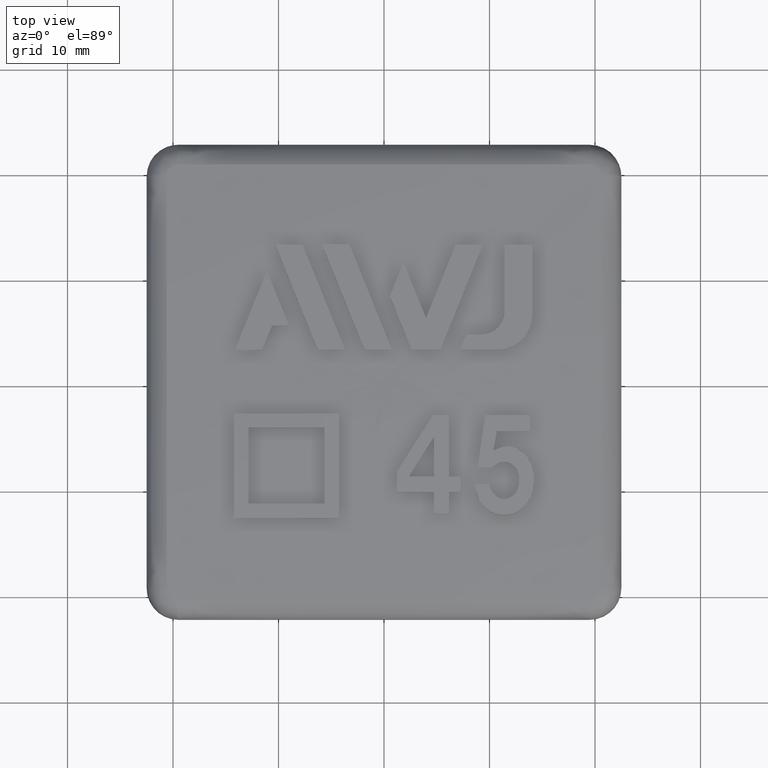
[diagram: clean part render]
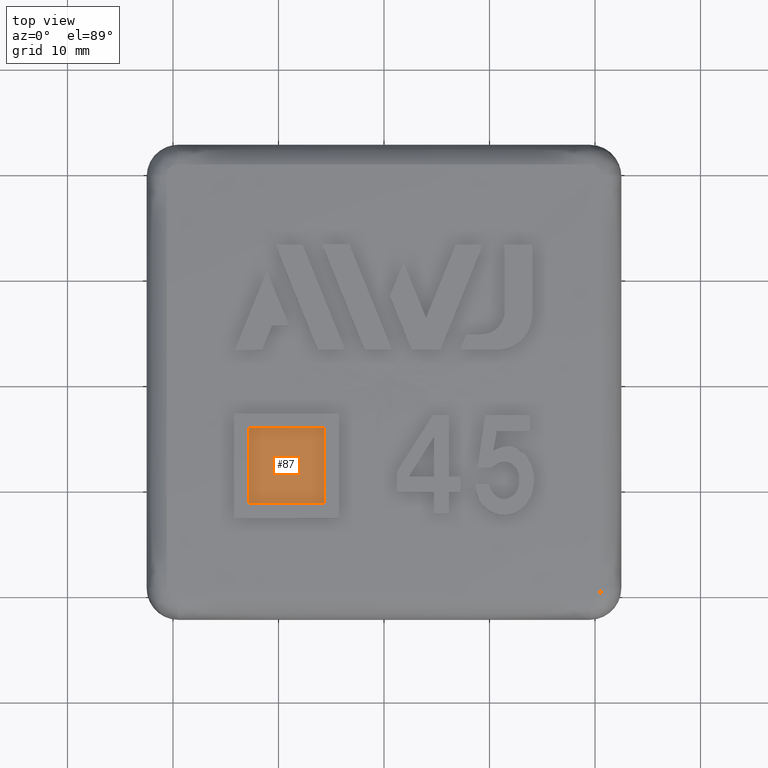
[diagram: same view with one face highlighted and labeled with its STEP entity id]
A machine part, top view. The second image highlights one B-rep face of the part: STEP entity #87.
In plain terms, the highlighted face is a freeform B-spline surface patch.
Its self-contained STEP definition (entity closure, byte-faithful):
#87 = ADVANCED_FACE( '', ( #391 ), #392, .T. );
#391 = FACE_OUTER_BOUND( '', #1242, .T. );
#392 = ( B_SPLINE_SURFACE( 3, 3, ( ( #1244, #1245, #1246, #1247 ), ( #1248, #1249, #1250, #1251 ), ( #1252, #1253, #1254, #1255 ), ( #1256, #1257, #1258, #1259 ) ), .UNSPECIFIED., .F., .F., .F. )B_SPLINE_SURFACE_WITH_KNOTS( ( 4, 4 ), ( 4, 4 ), ( 5.16032654171160, 5.96071117933298 ), ( -1.55936830234994, -1.52990122035821 ), .UNSPECIFIED. )RATIONAL_B_SPLINE_SURFACE( ( ( 1.00000000000000, 0.947324056331647, 0.947324056331647, 1.00000000000000 ), ( 0.999927642232191, 0.947255510077538, 0.947255510077538, 0.999927642232191 ), ( 0.999927642232191, 0.947255510077538, 0.947255510077538, 0.999927642232191 ), ( 1.00000000000000, 0.947324056331647, 0.947324056331647, 1.00000000000000 ) ) )BOUNDED_SURFACE(  )REPRESENTATION_ITEM( '' )GEOMETRIC_REPRESENTATION_ITEM(  )SURFACE(  ) );
#1242 = EDGE_LOOP( '', ( #3712, #3713, #3714, #3715 ) );
#1244 = CARTESIAN_POINT( '', ( -7.52779353144586, -15.6661306048325, 26.7208474507276 ) );
#1245 = CARTESIAN_POINT( '', ( -11.8230175461005, -13.6022157576236, 26.7208474507276 ) );
#1246 = CARTESIAN_POINT( '', ( -14.9747672133794, -10.0279790744417, 26.7208474507276 ) );
#1247 = CARTESIAN_POINT( '', ( -16.4849783694916, -5.50824942582882, 26.7208474507276 ) );
#1248 = CARTESIAN_POINT( '', ( -6.04003629453144, -12.5699512151582, 26.8614036215779 ) );
#1249 = CARTESIAN_POINT( '', ( -9.48637270549758, -10.9139386619593, 26.8614036215779 ) );
#1250 = CARTESIAN_POINT( '', ( -12.0152255894296, -8.04609708242038, 26.8614036215779 ) );
#1251 = CARTESIAN_POINT( '', ( -13.2269658101489, -4.41962526102226, 26.8614036215779 ) );
#1252 = CARTESIAN_POINT( '', ( -4.55154364823312, -9.47224136115757, 26.9513355321669 ) );
#1253 = CARTESIAN_POINT( '', ( -7.14857284410227, -8.22433273108338, 26.9513355321669 ) );
#1254 = CARTESIAN_POINT( '', ( -9.05422104220964, -6.06323543150141, 26.9513355321669 ) );
#1255 = CARTESIAN_POINT( '', ( -9.96734279114962, -3.33046298125548, 26.9513355321669 ) );
#1256 = CARTESIAN_POINT( '', ( -3.06263870456676, -6.37367347294161, 26.9906236606777 ) );
#1257 = CARTESIAN_POINT( '', ( -4.81012543585326, -5.53398180664029, 26.9906236606777 ) );
#1258 = CARTESIAN_POINT( '', ( -6.09239632675797, -4.07982454801358, 26.9906236606777 ) );
#1259 = CARTESIAN_POINT( '', ( -6.70681688963028, -2.24099901458254, 26.9906236606777 ) );
#3712 = ORIENTED_EDGE( '', *, *, #5953, .F. );
#3713 = ORIENTED_EDGE( '', *, *, #5954, .F. );
#3714 = ORIENTED_EDGE( '', *, *, #5955, .F. );
#3715 = ORIENTED_EDGE( '', *, *, #5956, .F. );
#5953 = EDGE_CURVE( '', #6831, #6832, #6833, .T. );
#5954 = EDGE_CURVE( '', #6834, #6831, #6835, .T. );
#5955 = EDGE_CURVE( '', #6836, #6834, #6837, .T. );
#5956 = EDGE_CURVE( '', #6832, #6836, #6838, .T. );
#6831 = VERTEX_POINT( '', #8920 );
#6832 = VERTEX_POINT( '', #8921 );
#6833 = B_SPLINE_CURVE_WITH_KNOTS( '', 3, ( #8922, #8923, #8924, #8925, #8926, #8927 ), .UNSPECIFIED., .F., .F., ( 4, 2, 4 ), ( 2.22719045286812, 2.23080527938218, 2.23442010589624 ), .UNSPECIFIED. );
#6834 = VERTEX_POINT( '', #8928 );
#6835 = B_SPLINE_CURVE_WITH_KNOTS( '', 3, ( #8929, #8930, #8931, #8932, #8933, #8934 ), .UNSPECIFIED., .F., .F., ( 4, 2, 4 ), ( 2.22748115193866, 2.23109519571887, 2.23470923949908 ), .UNSPECIFIED. );
#6836 = VERTEX_POINT( '', #8935 );
#6837 = B_SPLINE_CURVE_WITH_KNOTS( '', 3, ( #8936, #8937, #8938, #8939, #8940, #8941 ), .UNSPECIFIED., .F., .F., ( 4, 2, 4 ), ( 2.22524728310729, 2.22886052438405, 2.23247376566081 ), .UNSPECIFIED. );
#6838 = B_SPLINE_CURVE_WITH_KNOTS( '', 3, ( #8942, #8943, #8944, #8945, #8946, #8947 ), .UNSPECIFIED., .F., .F., ( 4, 2, 4 ), ( 2.22540026350544, 2.22901356562020, 2.23262686773497 ), .UNSPECIFIED. );
#8920 = CARTESIAN_POINT( '', ( -5.63915340909097, -4.36713636363640, 26.9899195442243 ) );
#8921 = CARTESIAN_POINT( '', ( -5.63915340909060, -11.5944090909091, 26.8756501340417 ) );
#8922 = CARTESIAN_POINT( '', ( -5.63915340909097, -4.36713636363656, 26.9899195442241 ) );
#8923 = CARTESIAN_POINT( '', ( -5.63915340909097, -5.57152824376022, 26.9813628669474 ) );
#8924 = CARTESIAN_POINT( '', ( -5.63915340909097, -6.77588831617752, 26.9681752996799 ) );
#8925 = CARTESIAN_POINT( '', ( -5.63915340909097, -9.18453093366058, 26.9305129433632 ) );
#8926 = CARTESIAN_POINT( '', ( -5.63915340909097, -10.3898428056126, 26.9060591593079 ) );
#8927 = CARTESIAN_POINT( '', ( -5.63915340909097, -11.5944090909091, 26.8756501340418 ) );
#8928 = CARTESIAN_POINT( '', ( -12.8664261363636, -4.36713636363640, 26.8554687963214 ) );
#8929 = CARTESIAN_POINT( '', ( -12.8664261363636, -4.36713636363640, 26.8554687963214 ) );
#8930 = CARTESIAN_POINT( '', ( -11.6622932234799, -4.36713636363640, 26.8897429315977 ) );
#8931 = CARTESIAN_POINT( '', ( -10.4574965976861, -4.36713636363640, 26.9179412035091 ) );
#8932 = CARTESIAN_POINT( '', ( -8.04838425465512, -4.36713636363640, 26.9625204219399 ) );
#8933 = CARTESIAN_POINT( '', ( -6.84378709936877, -4.36713636363640, 26.9788683427890 ) );
#8934 = CARTESIAN_POINT( '', ( -5.63915340909096, -4.36713636363640, 26.9899195442241 ) );
#8935 = CARTESIAN_POINT( '', ( -12.8664261363637, -11.5944090909091, 26.7233420342906 ) );
#8936 = CARTESIAN_POINT( '', ( -12.8664261363637, -11.5944090909091, 26.7233420342906 ) );
#8937 = CARTESIAN_POINT( '', ( -12.8664261363637, -10.3900198938670, 26.7561912449652 ) );
#8938 = CARTESIAN_POINT( '', ( -12.8664261363637, -9.18472573444416, 26.7834343797404 ) );
#8939 = CARTESIAN_POINT( '', ( -12.8664261363637, -6.77593838012224, 26.8272406730331 ) );
#8940 = CARTESIAN_POINT( '', ( -12.8664261363637, -5.57153970425106, 26.8438328193650 ) );
#8941 = CARTESIAN_POINT( '', ( -12.8664261363637, -4.36713636363640, 26.8554687963214 ) );
#8942 = CARTESIAN_POINT( '', ( -5.63915340909060, -11.5944090909091, 26.8756501340417 ) );
#8943 = CARTESIAN_POINT( '', ( -6.84411843728567, -11.5944090909091, 26.8608552512760 ) );
#8944 = CARTESIAN_POINT( '', ( -8.04903227558059, -11.5944090909091, 26.8410283976305 ) );
#8945 = CARTESIAN_POINT( '', ( -10.4587491179275, -11.5944090909091, 26.7904796763531 ) );
#8946 = CARTESIAN_POINT( '', ( -11.6624782738844, -11.5944090909091, 26.7597817582583 ) );
#8947 = CARTESIAN_POINT( '', ( -12.8664261363637, -11.5944090909091, 26.7233420342906 ) );